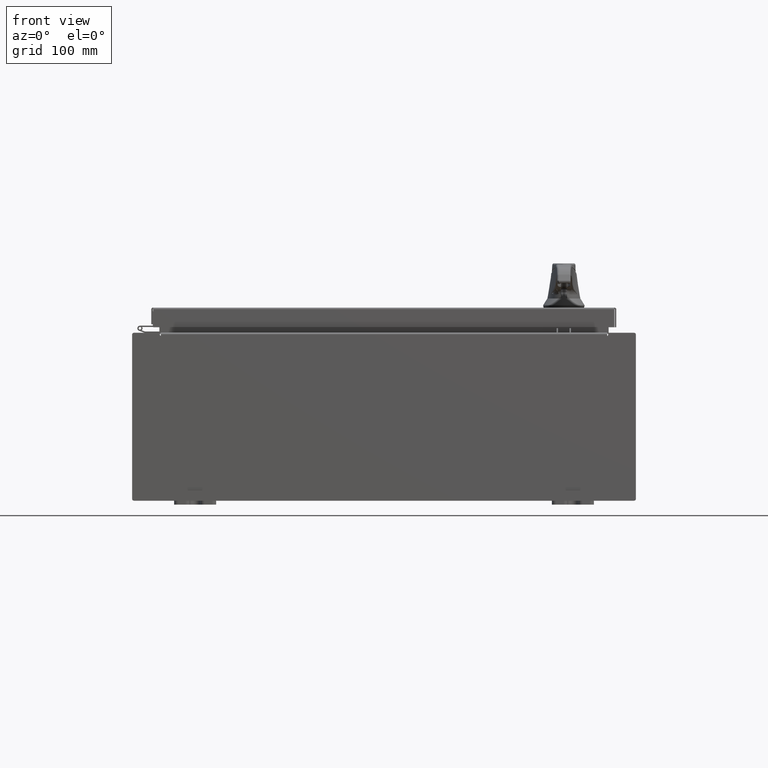
[diagram: clean part render]
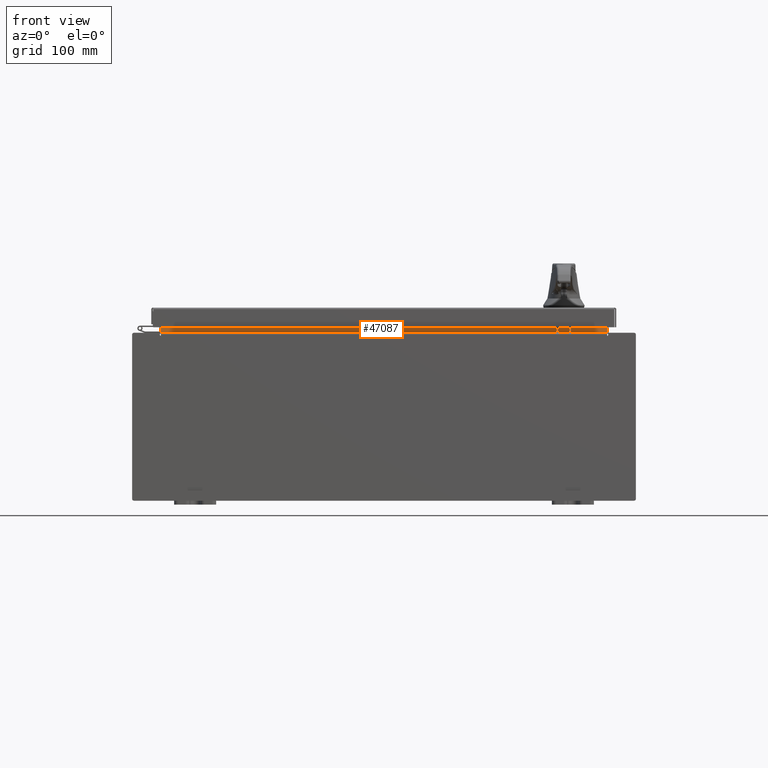
[diagram: same view with one face highlighted and labeled with its STEP entity id]
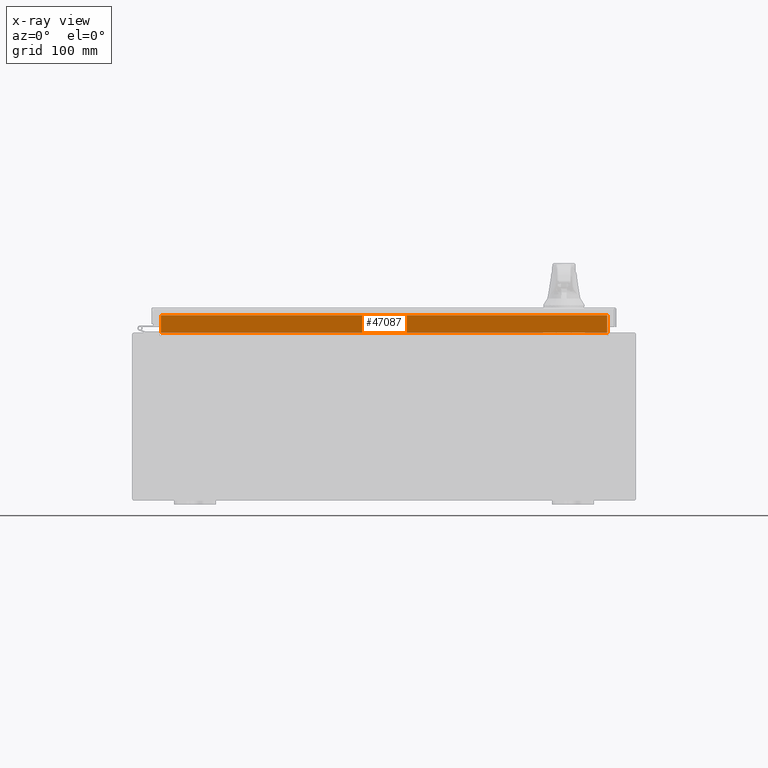
[diagram: x-ray of the same camera — body ghosted, the highlighted face saturated]
A machine part, front view. The second image highlights one B-rep face of the part: STEP entity #47087.
The next image is the same camera in x-ray: the body ghosted, the highlighted face saturated — about 0% of this face is hidden behind the body in this view.
In plain terms, the highlighted planar face has unit normal (0, -1, 0).
Its self-contained STEP definition (entity closure, byte-faithful):
#4481 = AXIS2_PLACEMENT_3D ( 'NONE', #49559, #66733, #15617 ) ;
#4931 = EDGE_LOOP ( 'NONE', ( #48617, #7950, #27961, #87978 ) ) ;
#7027 = PLANE ( 'NONE',  #4481 ) ;
#7950 = ORIENTED_EDGE ( 'NONE', *, *, #80674, .F. ) ;
#10308 = EDGE_CURVE ( 'NONE', #67388, #98827, #57848, .T. ) ;
#10329 = LINE ( 'NONE', #29112, #55767 ) ;
#15617 = DIRECTION ( 'NONE',  ( 0.0000000000000000000, -0.0000000000000000000, 1.000000000000000000 ) ) ;
#20114 = CARTESIAN_POINT ( 'NONE',  ( -10.63720000000000200, -1.300299999999999800, 4.000000000000004400 ) ) ;
#22886 = CARTESIAN_POINT ( 'NONE',  ( -10.63720000000000200, -1.300299999999999800, 4.013000000000003500 ) ) ;
#25186 = CARTESIAN_POINT ( 'NONE',  ( 10.63720000000000200, -1.300299999999999300, 4.837600000000003700 ) ) ;
#27961 = ORIENTED_EDGE ( 'NONE', *, *, #53692, .F. ) ;
#28710 = DIRECTION ( 'NONE',  ( -0.0000000000000000000, -0.0000000000000000000, -1.000000000000000000 ) ) ;
#28998 = VERTEX_POINT ( 'NONE', #40318 ) ;
#29112 = CARTESIAN_POINT ( 'NONE',  ( 10.63720000000000200, -1.300299999999999800, 4.925300000000004500 ) ) ;
#33375 = CARTESIAN_POINT ( 'NONE',  ( 10.63720000000000200, -1.300299999999999800, 4.837600000000003700 ) ) ;
#40318 = CARTESIAN_POINT ( 'NONE',  ( -10.63720000000000200, -1.300299999999999300, 4.837600000000003700 ) ) ;
#40820 = VERTEX_POINT ( 'NONE', #33375 ) ;
#47087 = ADVANCED_FACE ( 'NONE', ( #69596 ), #7027, .T. ) ;
#47475 = CARTESIAN_POINT ( 'NONE',  ( 10.63720000000000400, -1.300299999999999800, 4.013000000000003500 ) ) ;
#48407 = CARTESIAN_POINT ( 'NONE',  ( -10.63720000000000400, -1.300299999999999800, 4.013000000000003500 ) ) ;
#48617 = ORIENTED_EDGE ( 'NONE', *, *, #50751, .F. ) ;
#49559 = CARTESIAN_POINT ( 'NONE',  ( 0.0000000000000000000, -1.300299999999999800, 0.0000000000000000000 ) ) ;
#50751 = EDGE_CURVE ( 'NONE', #28998, #67388, #98749, .T. ) ;
#53365 = VECTOR ( 'NONE', #28710, 39.37007874015748100 ) ;
#53692 = EDGE_CURVE ( 'NONE', #98827, #40820, #10329, .T. ) ;
#55767 = VECTOR ( 'NONE', #106015, 39.37007874015748100 ) ;
#57848 = LINE ( 'NONE', #22886, #77822 ) ;
#60292 = VECTOR ( 'NONE', #84870, 39.37007874015748100 ) ;
#66733 = DIRECTION ( 'NONE',  ( 0.0000000000000000000, 1.000000000000000000, 0.0000000000000000000 ) ) ;
#67388 = VERTEX_POINT ( 'NONE', #48407 ) ;
#67684 = DIRECTION ( 'NONE',  ( 1.000000000000000000, 0.0000000000000000000, -2.568202152506545800E-017 ) ) ;
#69596 = FACE_OUTER_BOUND ( 'NONE', #4931, .T. ) ;
#77822 = VECTOR ( 'NONE', #67684, 39.37007874015748100 ) ;
#80674 = EDGE_CURVE ( 'NONE', #40820, #28998, #82883, .T. ) ;
#82883 = LINE ( 'NONE', #25186, #60292 ) ;
#84870 = DIRECTION ( 'NONE',  ( -1.000000000000000000, -0.0000000000000000000, -0.0000000000000000000 ) ) ;
#87978 = ORIENTED_EDGE ( 'NONE', *, *, #10308, .F. ) ;
#98749 = LINE ( 'NONE', #20114, #53365 ) ;
#98827 = VERTEX_POINT ( 'NONE', #47475 ) ;
#106015 = DIRECTION ( 'NONE',  ( -0.0000000000000000000, -0.0000000000000000000, 1.000000000000000000 ) ) ;